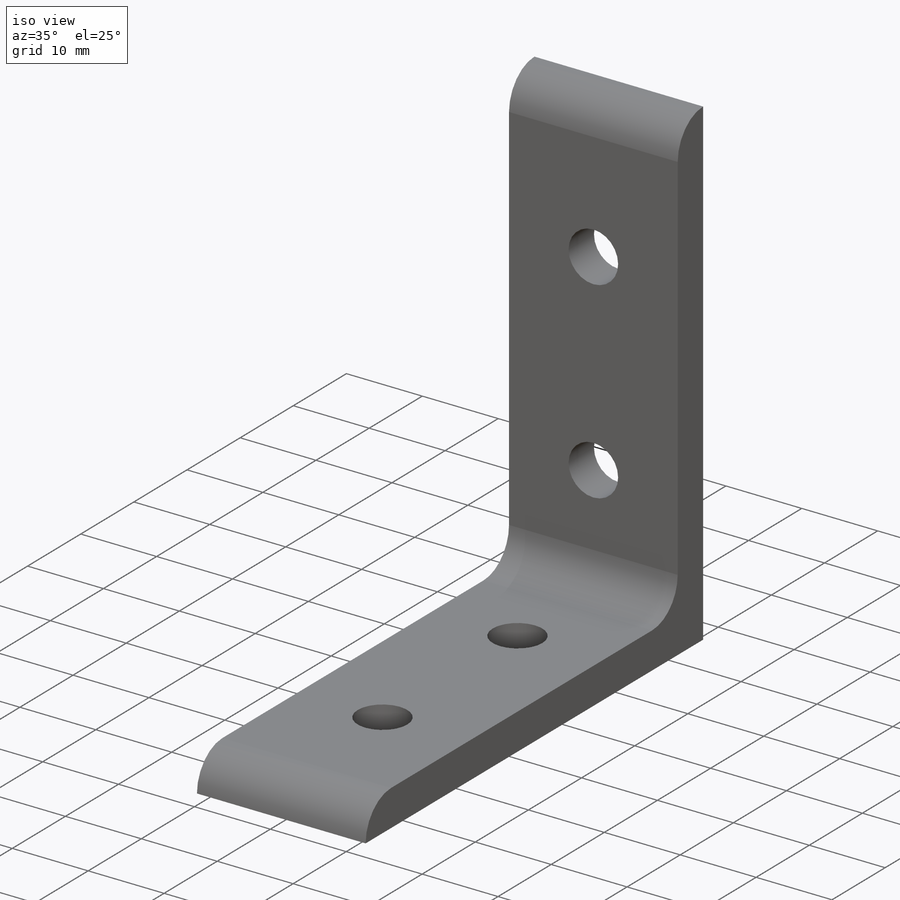
[diagram: iso view]
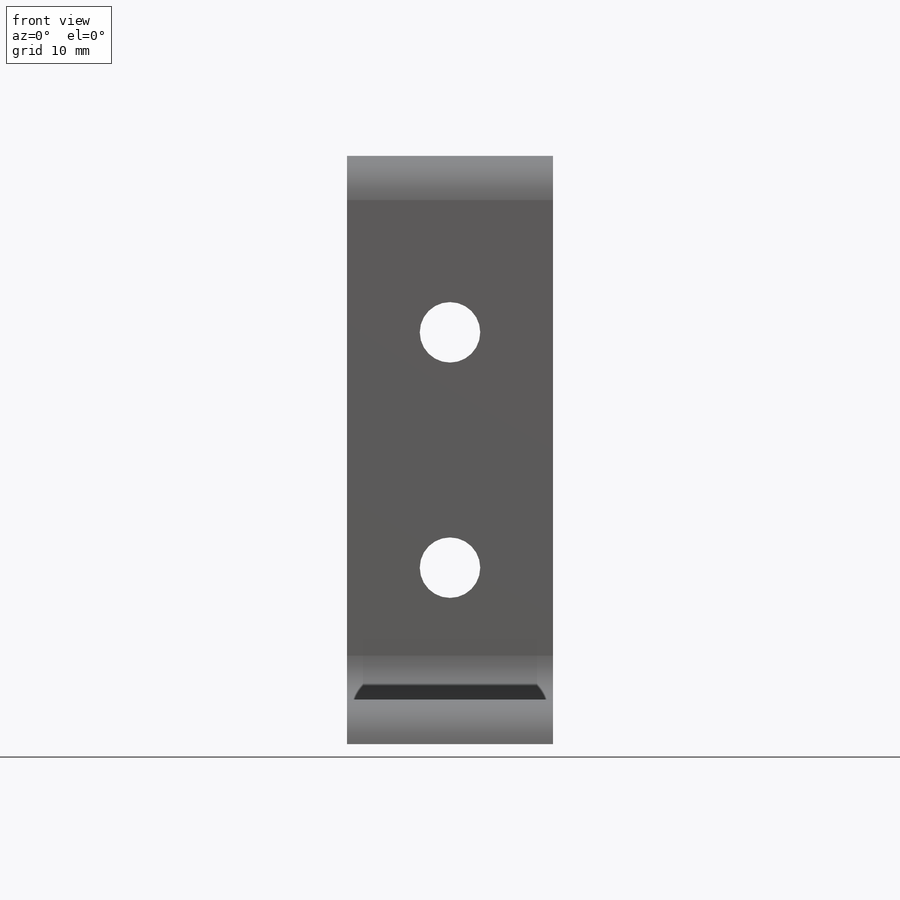
[diagram: front view]
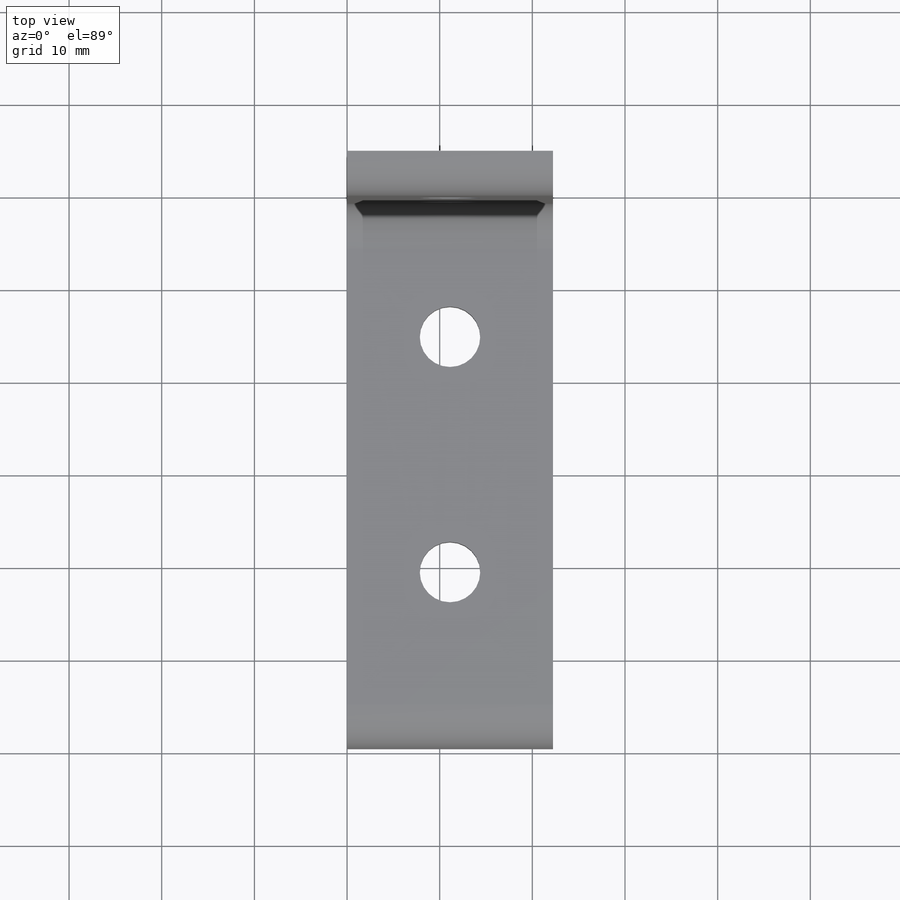
[diagram: top view]
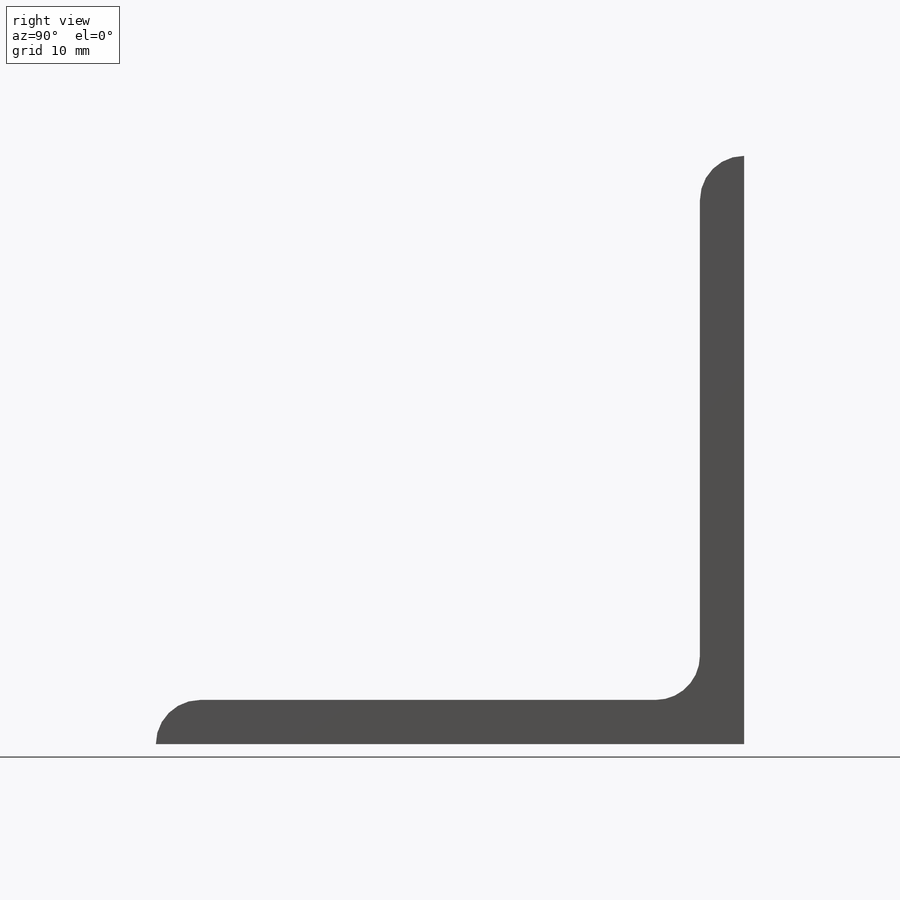
[diagram: right view]
SOLIDWORKS PART (.sldprt)
format: sldprt  version: not decoded by parser v0  size: 157,184 bytes
history: native  units: mm
features: sketch x2, material x1, extrude x1, cut_extrude x1, mirror x1, fillet x1 (+11 scaffold rows collapsed)
feature tree (18):
  scaffold x11  (default folders/planes/origin — collapsed)
  material  "6061 Alloy"
  sketch  "Sketch1"  dims[c1.D3=~5.377499mm c1.D1=135.0deg c2.D1=~66.165636mm c3.D1=45.0deg c4.D1=63.5mm c4.D2=4.7752mm]
  extrude  "Extrude1"  Depth=22.225mm
  sketch  "Sketch2"  dims[D3=~3.888005mm D1=19.05mm D2=19.05mm]
  cut_extrude  "Cut-Extrude1"  Depth=22.225mm
  mirror  "Mirror1"
  fillet  "Fillet1"  Radius=4.7752mm
decode coverage: 5 of 6 modeling features carry decoded parameters
note: ~ marks probable driven/reference dimensions
note: suppression state not decoded; provenance and decode notes live in map.json
